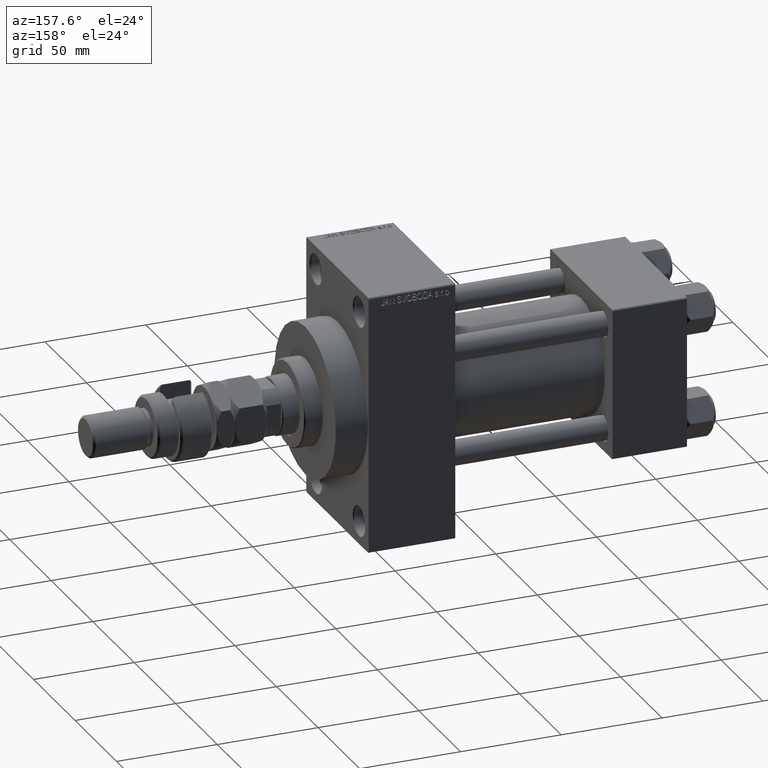
[diagram: clean part render]
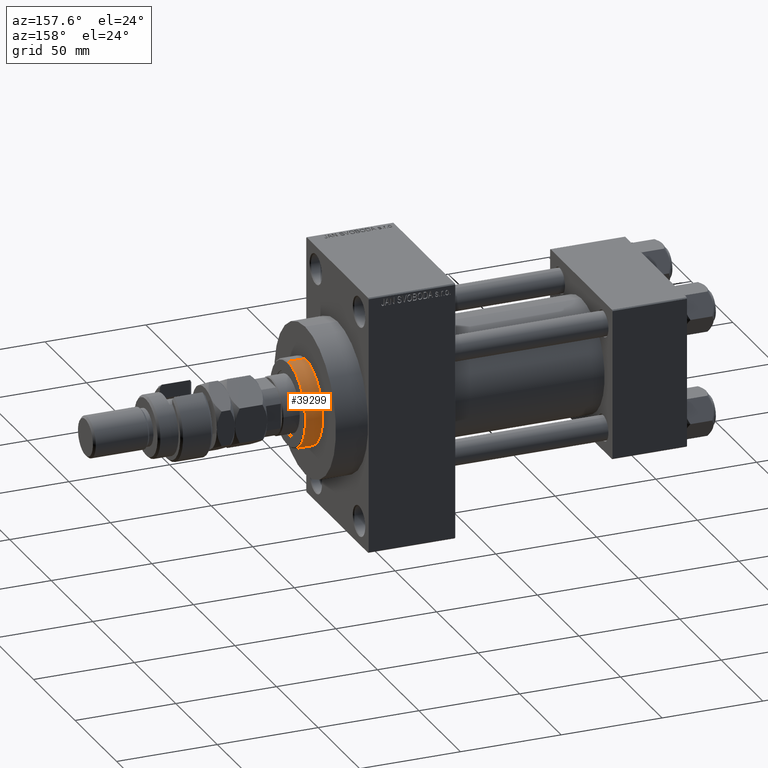
[diagram: same view with one face highlighted and labeled with its STEP entity id]
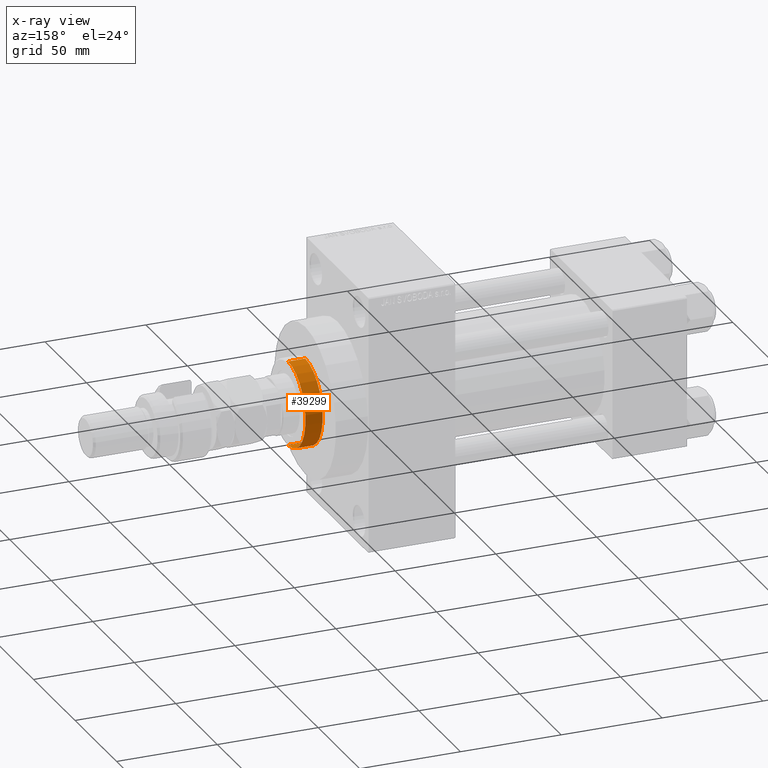
[diagram: x-ray of the same camera — body ghosted, the highlighted face saturated]
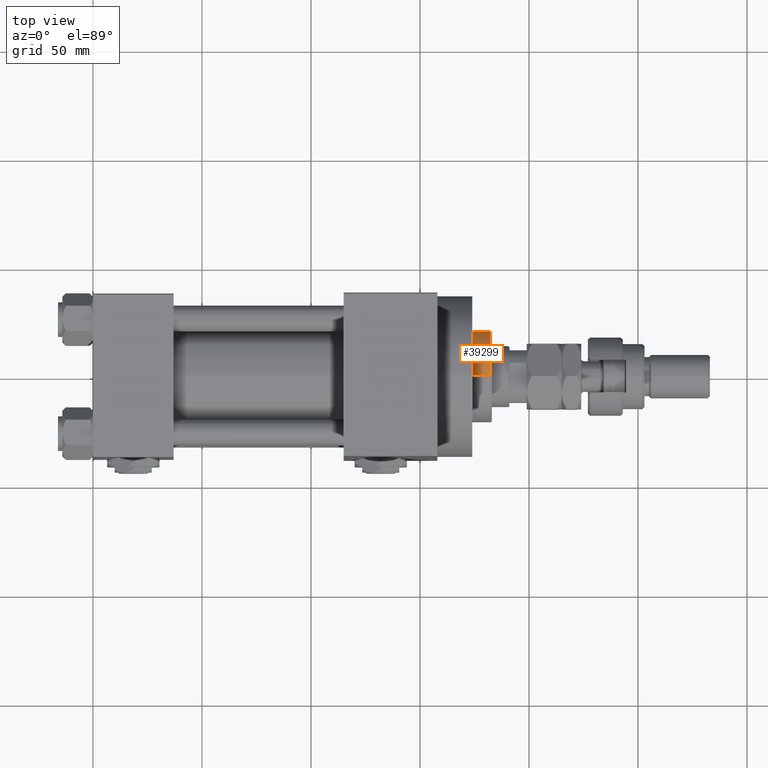
[diagram: same view with one face highlighted and labeled with its STEP entity id]
A machine part, auxiliary view. The second image highlights one B-rep face of the part: STEP entity #39299.
The next image is the same camera in x-ray: the body ghosted, the highlighted face saturated — about 0% of this face is hidden behind the body in this view.
A second angle (top view) of the same face is appended — the face is thin or edge-on in the first view.
In plain terms, the highlighted cylindrical surface (partial cylindrical patch) has radius 21 mm, axis along (-1, 0, 0).
Its self-contained STEP definition (entity closure, byte-faithful):
#879 = LINE ( 'NONE', #1423, #25206 ) ;
#1139 = DIRECTION ( 'NONE',  ( 1.000000000000000000, 0.000000000000000000, 0.000000000000000000 ) ) ;
#1188 = ORIENTED_EDGE ( 'NONE', *, *, #47952, .F. ) ;
#1423 = CARTESIAN_POINT ( 'NONE',  ( 21.00000000000000000, 2.571758278209441661E-15, 52.25999999999999801 ) ) ;
#6258 = CARTESIAN_POINT ( 'NONE',  ( 21.00000000000000000, 2.571758278209441661E-15, 51.75999999999999801 ) ) ;
#7017 = LINE ( 'NONE', #50765, #38392 ) ;
#8025 = ORIENTED_EDGE ( 'NONE', *, *, #37237, .T. ) ;
#8815 = DIRECTION ( 'NONE',  ( -0.000000000000000000, -0.000000000000000000, -1.000000000000000000 ) ) ;
#9077 = CARTESIAN_POINT ( 'NONE',  ( 0.000000000000000000, 0.000000000000000000, 51.75999999999999801 ) ) ;
#10666 = CARTESIAN_POINT ( 'NONE',  ( -21.00000000000000000, 0.000000000000000000, 51.75999999999999801 ) ) ;
#10836 = DIRECTION ( 'NONE',  ( -1.000000000000000000, 0.000000000000000000, 0.000000000000000000 ) ) ;
#11672 = EDGE_CURVE ( 'NONE', #19160, #36277, #47379, .T. ) ;
#12010 = CARTESIAN_POINT ( 'NONE',  ( 0.000000000000000000, 0.000000000000000000, 43.25999999999999801 ) ) ;
#12059 = AXIS2_PLACEMENT_3D ( 'NONE', #9077, #25164, #1139 ) ;
#12145 = ORIENTED_EDGE ( 'NONE', *, *, #11672, .T. ) ;
#16139 = EDGE_LOOP ( 'NONE', ( #1188, #12145, #8025, #43049 ) ) ;
#19160 = VERTEX_POINT ( 'NONE', #6258 ) ;
#19995 = CIRCLE ( 'NONE', #26727, 21.00000000000000000 ) ;
#22699 = CYLINDRICAL_SURFACE ( 'NONE', #43524, 21.00000000000000000 ) ;
#25164 = DIRECTION ( 'NONE',  ( 0.000000000000000000, 0.000000000000000000, -1.000000000000000000 ) ) ;
#25206 = VECTOR ( 'NONE', #8815, 1000.000000000000000 ) ;
#26727 = AXIS2_PLACEMENT_3D ( 'NONE', #12010, #36477, #51515 ) ;
#26826 = VERTEX_POINT ( 'NONE', #37781 ) ;
#35237 = DIRECTION ( 'NONE',  ( -0.000000000000000000, -0.000000000000000000, -1.000000000000000000 ) ) ;
#36277 = VERTEX_POINT ( 'NONE', #10666 ) ;
#36477 = DIRECTION ( 'NONE',  ( 0.000000000000000000, 0.000000000000000000, 1.000000000000000000 ) ) ;
#37237 = EDGE_CURVE ( 'NONE', #36277, #43982, #7017, .T. ) ;
#37781 = CARTESIAN_POINT ( 'NONE',  ( 21.00000000000000000, 2.571758278209441661E-15, 43.25999999999999801 ) ) ;
#38392 = VECTOR ( 'NONE', #35237, 1000.000000000000000 ) ;
#39299 = ADVANCED_FACE ( 'NONE', ( #46907 ), #22699, .T. ) ;
#40058 = EDGE_CURVE ( 'NONE', #43982, #26826, #19995, .T. ) ;
#43049 = ORIENTED_EDGE ( 'NONE', *, *, #40058, .T. ) ;
#43524 = AXIS2_PLACEMENT_3D ( 'NONE', #43734, #51388, #10836 ) ;
#43734 = CARTESIAN_POINT ( 'NONE',  ( 0.000000000000000000, 0.000000000000000000, 52.25999999999999801 ) ) ;
#43982 = VERTEX_POINT ( 'NONE', #44210 ) ;
#44210 = CARTESIAN_POINT ( 'NONE',  ( -21.00000000000000000, 0.000000000000000000, 43.25999999999999801 ) ) ;
#46907 = FACE_OUTER_BOUND ( 'NONE', #16139, .T. ) ;
#47379 = CIRCLE ( 'NONE', #12059, 21.00000000000000000 ) ;
#47952 = EDGE_CURVE ( 'NONE', #19160, #26826, #879, .T. ) ;
#50765 = CARTESIAN_POINT ( 'NONE',  ( -21.00000000000000000, 0.000000000000000000, 52.25999999999999801 ) ) ;
#51388 = DIRECTION ( 'NONE',  ( -0.000000000000000000, -0.000000000000000000, -1.000000000000000000 ) ) ;
#51515 = DIRECTION ( 'NONE',  ( 1.000000000000000000, 0.000000000000000000, 0.000000000000000000 ) ) ;